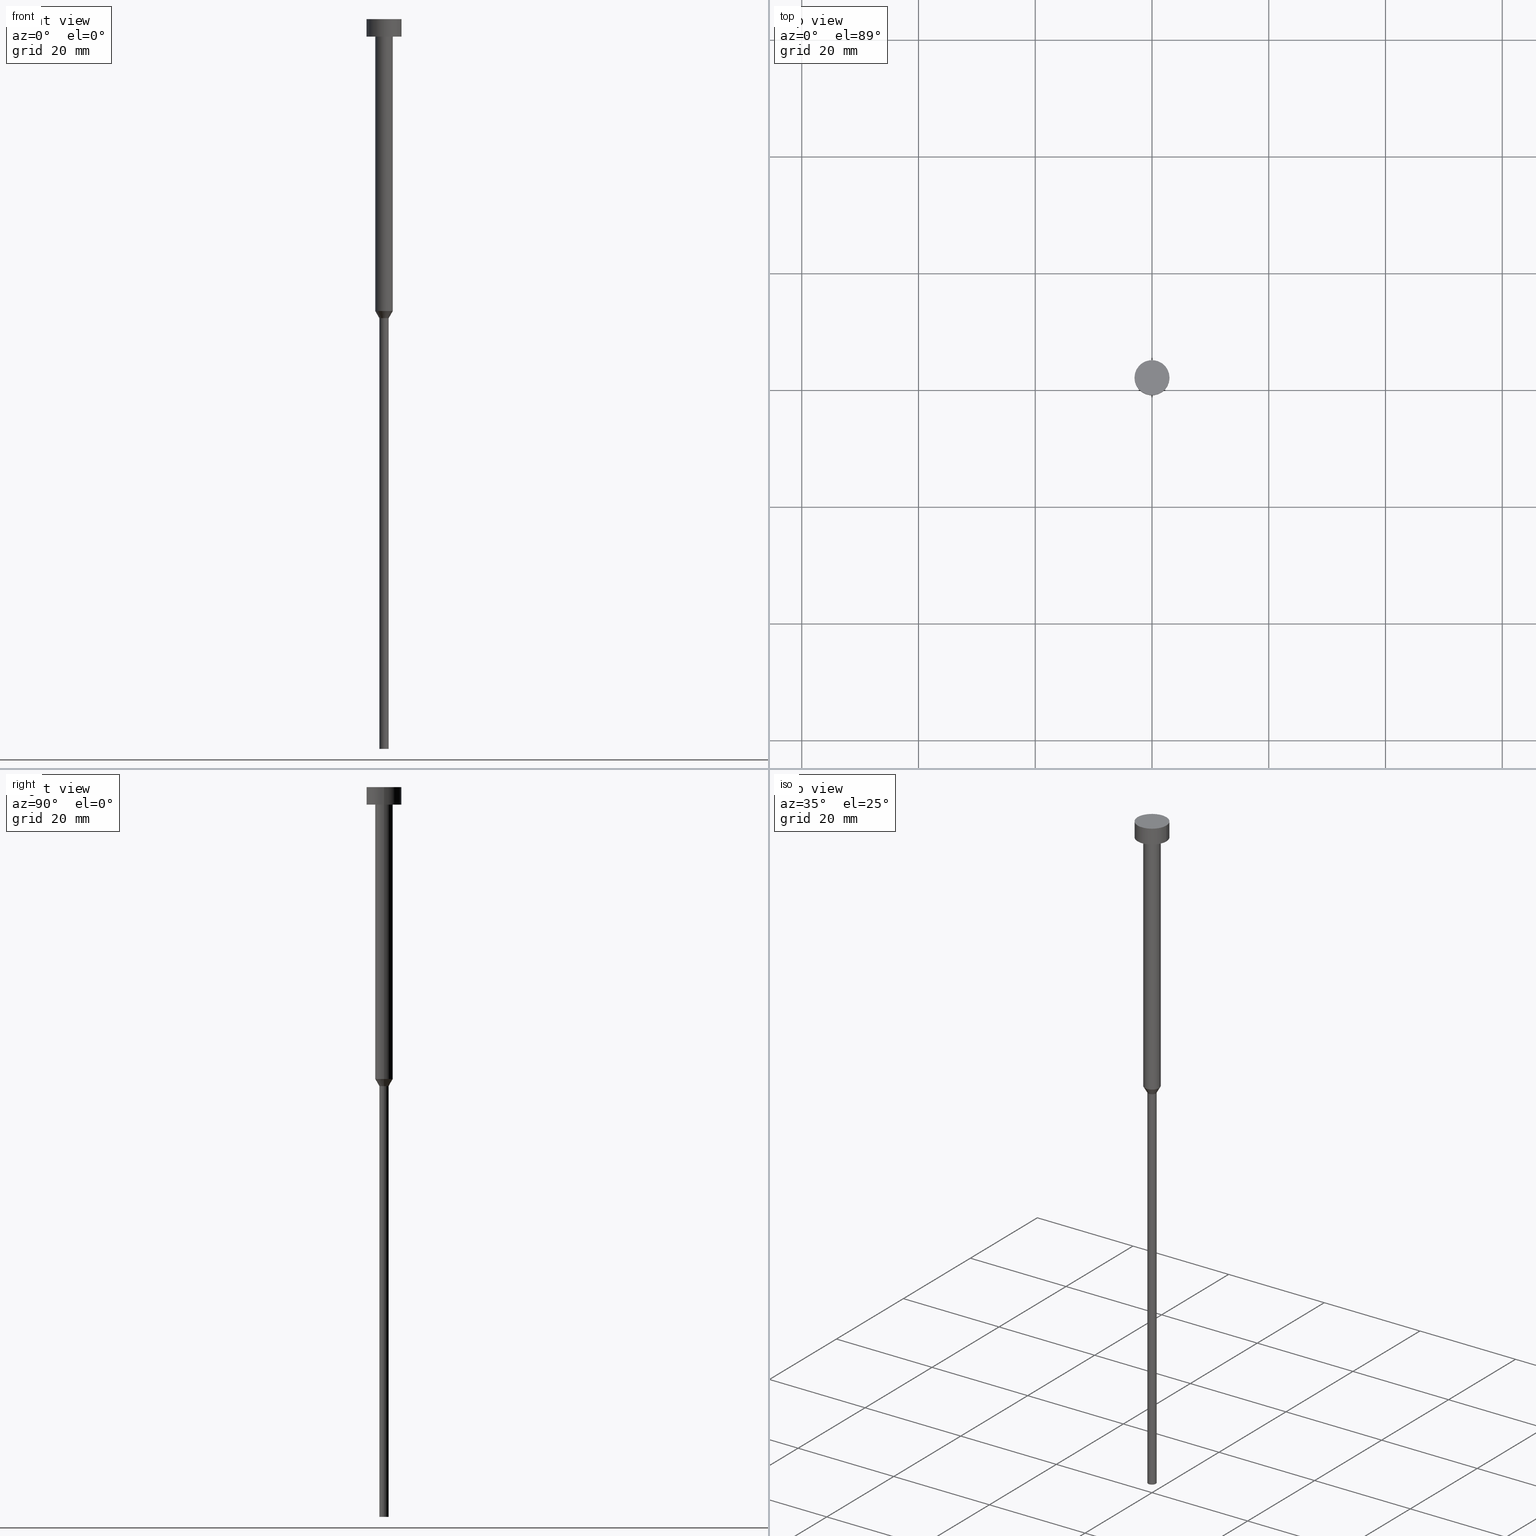
[diagram: canonical four-view strip — front | top / right | iso, engineering-drawing reading convention]
A machine part, canonical four-view strip (front | top / right | iso — engineering-drawing reading convention). The complete STEP part file that produces these views, byte-faithful:
ISO-10303-21;
HEADER;
FILE_DESCRIPTION (( 'STEP AP203' ),
    '1' );
FILE_NAME ('b818.STEP',
    '2023-02-13T10:54:30',
    ( '' ),
    ( '' ),
    'SwSTEP 2.0',
    'SolidWorks 2019',
    '' );
FILE_SCHEMA (( 'CONFIG_CONTROL_DESIGN' ));
ENDSEC;

DATA;
#1 = AXIS2_PLACEMENT_3D ( 'NONE', #355, #107, #352 ) ;
#2 = DATE_TIME_ROLE ( 'creation_date' ) ;
#3 = EDGE_LOOP ( 'NONE', ( #95, #169, #94, #336 ) ) ;
#4 = APPROVAL_STATUS ( 'not_yet_approved' ) ;
#5 = CARTESIAN_POINT ( 'NONE',  ( 1.500000000000000000, 0.000000000000000000, -3.000000000000000888 ) ) ;
#6 = CARTESIAN_POINT ( 'NONE',  ( 0.000000000000000000, 0.000000000000000000, 0.000000000000000000 ) ) ;
#7 = ORIENTED_EDGE ( 'NONE', *, *, #268, .F. ) ;
#8 = AXIS2_PLACEMENT_3D ( 'NONE', #243, #158, #82 ) ;
#9 = APPLICATION_PROTOCOL_DEFINITION ( 'international standard', 'config_control_design', 1994, #313 ) ;
#10 = ORIENTED_EDGE ( 'NONE', *, *, #162, .F. ) ;
#11 = ORIENTED_EDGE ( 'NONE', *, *, #291, .T. ) ;
#12 = CIRCLE ( 'NONE', #133, 0.7999999999999999334 ) ;
#13 = DIRECTION ( 'NONE',  ( 1.000000000000000000, 0.000000000000000000, 0.000000000000000000 ) ) ;
#14 = CC_DESIGN_APPROVAL ( #106, ( #117 ) ) ;
#15 = PLANE ( 'NONE',  #17 ) ;
#16 = FACE_OUTER_BOUND ( 'NONE', #122, .T. ) ;
#17 = AXIS2_PLACEMENT_3D ( 'NONE', #76, #262, #130 ) ;
#18 = FACE_OUTER_BOUND ( 'NONE', #201, .T. ) ;
#19 = CIRCLE ( 'NONE', #199, 3.000000000000000000 ) ;
#20 = CYLINDRICAL_SURFACE ( 'NONE', #123, 1.500000000000000000 ) ;
#21 = CARTESIAN_POINT ( 'NONE',  ( 0.000000000000000000, 0.000000000000000000, -3.000000000000000888 ) ) ;
#22 = DIRECTION ( 'NONE',  ( 1.000000000000000000, 0.000000000000000000, 0.000000000000000000 ) ) ;
#23 = CC_DESIGN_APPROVAL ( #44, ( #296 ) ) ;
#24 = PRODUCT ( 'b818', 'b818', '', ( #290 ) ) ;
#25 =( NAMED_UNIT ( * ) SI_UNIT ( $, .STERADIAN. ) SOLID_ANGLE_UNIT ( ) );
#26 = CARTESIAN_POINT ( 'NONE',  ( -3.000000000000000000, 3.673940397442059868E-16, -3.000000000000000888 ) ) ;
#27 = VERTEX_POINT ( 'NONE', #305 ) ;
#28 = DIRECTION ( 'NONE',  ( 1.000000000000000000, 0.000000000000000000, 0.000000000000000000 ) ) ;
#29 = VECTOR ( 'NONE', #151, 1000.000000000000000 ) ;
#30 = EDGE_LOOP ( 'NONE', ( #284, #288 ) ) ;
#31 = VECTOR ( 'NONE', #254, 1000.000000000000000 ) ;
#32 = CARTESIAN_POINT ( 'NONE',  ( 0.000000000000000000, 0.000000000000000000, 0.000000000000000000 ) ) ;
#33 = FACE_OUTER_BOUND ( 'NONE', #337, .T. ) ;
#34 = ORIENTED_EDGE ( 'NONE', *, *, #231, .F. ) ;
#35 = PERSON_AND_ORGANIZATION ( #121, #249 ) ;
#36 = EDGE_LOOP ( 'NONE', ( #87, #10 ) ) ;
#37 = ORIENTED_EDGE ( 'NONE', *, *, #354, .F. ) ;
#38 = AXIS2_PLACEMENT_3D ( 'NONE', #276, #214, #216 ) ;
#39 = ORIENTED_EDGE ( 'NONE', *, *, #41, .F. ) ;
#40 = DIRECTION ( 'NONE',  ( -0.000000000000000000, -0.000000000000000000, 1.000000000000000000 ) ) ;
#41 = EDGE_CURVE ( 'NONE', #221, #64, #251, .T. ) ;
#42 = CYLINDRICAL_SURFACE ( 'NONE', #43, 1.500000000000000000 ) ;
#43 = AXIS2_PLACEMENT_3D ( 'NONE', #45, #294, #155 ) ;
#44 = APPROVAL ( #222, 'NEUR�EN�' ) ;
#45 = CARTESIAN_POINT ( 'NONE',  ( 0.000000000000000000, 0.000000000000000000, 0.000000000000000000 ) ) ;
#46 = CARTESIAN_POINT ( 'NONE',  ( -1.500000000000000000, 1.836970198721029934E-16, -50.00000000000000000 ) ) ;
#47 = PRODUCT_DEFINITION ( 'NEZN�M�', '', #117, #318 ) ;
#48 = CARTESIAN_POINT ( 'NONE',  ( 0.000000000000000000, 0.000000000000000000, -3.000000000000000888 ) ) ;
#49 = VECTOR ( 'NONE', #303, 1000.000000000000000 ) ;
#50 = LINE ( 'NONE', #85, #49 ) ;
#51 = DIRECTION ( 'NONE',  ( -0.000000000000000000, -0.000000000000000000, 1.000000000000000000 ) ) ;
#52 = ADVANCED_BREP_SHAPE_REPRESENTATION ( 'b818', ( #204, #344 ), #141 ) ;
#53 = DIRECTION ( 'NONE',  ( -0.000000000000000000, -0.000000000000000000, 1.000000000000000000 ) ) ;
#54 = CIRCLE ( 'NONE', #244, 0.7999999999999999334 ) ;
#55 = DIRECTION ( 'NONE',  ( -0.000000000000000000, -0.000000000000000000, 1.000000000000000000 ) ) ;
#56 = DIRECTION ( 'NONE',  ( -0.000000000000000000, -0.000000000000000000, 1.000000000000000000 ) ) ;
#57 = PERSON_AND_ORGANIZATION_ROLE ( 'creator' ) ;
#58 = CC_DESIGN_PERSON_AND_ORGANIZATION_ASSIGNMENT ( #309, #60, ( #296 ) ) ;
#59 = ORIENTED_EDGE ( 'NONE', *, *, #162, .T. ) ;
#60 = PERSON_AND_ORGANIZATION_ROLE ( 'classification_officer' ) ;
#61 = ORIENTED_EDGE ( 'NONE', *, *, #280, .T. ) ;
#62 = ADVANCED_FACE ( 'NONE', ( #33 ), #167, .T. ) ;
#63 = DATE_AND_TIME ( #220, #322 ) ;
#64 = VERTEX_POINT ( 'NONE', #5 ) ;
#65 = EDGE_CURVE ( 'NONE', #282, #27, #350, .T. ) ;
#66 = ORIENTED_EDGE ( 'NONE', *, *, #270, .T. ) ;
#67 = VECTOR ( 'NONE', #323, 1000.000000000000000 ) ;
#68 = DATE_AND_TIME ( #252, #227 ) ;
#69 = APPROVAL_PERSON_ORGANIZATION ( #113, #106, #200 ) ;
#70 = EDGE_LOOP ( 'NONE', ( #205, #59, #61, #146 ) ) ;
#71 = CARTESIAN_POINT ( 'NONE',  ( 0.000000000000000000, 0.000000000000000000, -50.00000000000000000 ) ) ;
#72 = CARTESIAN_POINT ( 'NONE',  ( 0.000000000000000000, 0.000000000000000000, -1.836970198721029934E-16 ) ) ;
#73 = CARTESIAN_POINT ( 'NONE',  ( 0.000000000000000000, 0.000000000000000000, 0.000000000000000000 ) ) ;
#74 = AXIS2_PLACEMENT_3D ( 'NONE', #72, #181, #101 ) ;
#75 = DIRECTION ( 'NONE',  ( -0.000000000000000000, -0.000000000000000000, 1.000000000000000000 ) ) ;
#76 = CARTESIAN_POINT ( 'NONE',  ( 0.000000000000000000, 0.000000000000000000, -125.0000000000000000 ) ) ;
#77 = AXIS2_PLACEMENT_3D ( 'NONE', #48, #324, #317 ) ;
#78 = EDGE_CURVE ( 'NONE', #120, #171, #184, .T. ) ;
#79 = CARTESIAN_POINT ( 'NONE',  ( -3.000000000000000000, 3.673940397442059868E-16, -3.673940397442059868E-16 ) ) ;
#80 = CIRCLE ( 'NONE', #289, 0.8000000000000001554 ) ;
#81 =( LENGTH_UNIT ( ) NAMED_UNIT ( * ) SI_UNIT ( .MILLI., .METRE. ) );
#82 = DIRECTION ( 'NONE',  ( 1.000000000000000000, 0.000000000000000000, 0.000000000000000000 ) ) ;
#83 = CARTESIAN_POINT ( 'NONE',  ( 0.000000000000000000, 0.000000000000000000, 0.000000000000000000 ) ) ;
#84 = CIRCLE ( 'NONE', #8, 1.500000000000000000 ) ;
#85 = CARTESIAN_POINT ( 'NONE',  ( 3.000000000000000000, 0.000000000000000000, 0.000000000000000000 ) ) ;
#86 = DIRECTION ( 'NONE',  ( 1.000000000000000000, 0.000000000000000000, 0.000000000000000000 ) ) ;
#87 = ORIENTED_EDGE ( 'NONE', *, *, #291, .F. ) ;
#88 = PERSON_AND_ORGANIZATION ( #121, #249 ) ;
#89 = ORIENTED_EDGE ( 'NONE', *, *, #345, .T. ) ;
#90 = LOCAL_TIME ( 11, 54, 30.00000000000000000, #202 ) ;
#91 = PERSON_AND_ORGANIZATION_ROLE ( 'creator' ) ;
#92 = ORIENTED_EDGE ( 'NONE', *, *, #41, .T. ) ;
#93 = SHAPE_DEFINITION_REPRESENTATION ( #228, #52 ) ;
#94 = ORIENTED_EDGE ( 'NONE', *, *, #253, .T. ) ;
#95 = ORIENTED_EDGE ( 'NONE', *, *, #132, .F. ) ;
#96 = CIRCLE ( 'NONE', #157, 3.000000000000000000 ) ;
#97 = CARTESIAN_POINT ( 'NONE',  ( 1.500000000000000000, 0.000000000000000000, -50.00000000000000000 ) ) ;
#98 = CARTESIAN_POINT ( 'NONE',  ( -1.500000000000000000, 1.836970198721029934E-16, 0.000000000000000000 ) ) ;
#99 = FACE_OUTER_BOUND ( 'NONE', #70, .T. ) ;
#100 = EDGE_CURVE ( 'NONE', #203, #312, #173, .T. ) ;
#101 = DIRECTION ( 'NONE',  ( 1.000000000000000000, 0.000000000000000000, 0.000000000000000000 ) ) ;
#102 = AXIS2_PLACEMENT_3D ( 'NONE', #269, #51, #163 ) ;
#103 = CARTESIAN_POINT ( 'NONE',  ( 0.7999999999999999334, 0.000000000000000000, -125.0000000000000000 ) ) ;
#104 = DIRECTION ( 'NONE',  ( -0.000000000000000000, -0.000000000000000000, 1.000000000000000000 ) ) ;
#105 = DIRECTION ( 'NONE',  ( 1.000000000000000000, 0.000000000000000000, 0.000000000000000000 ) ) ;
#106 = APPROVAL ( #281, 'NEUR�EN�' ) ;
#107 = DIRECTION ( 'NONE',  ( -0.000000000000000000, -0.000000000000000000, 1.000000000000000000 ) ) ;
#108 = CARTESIAN_POINT ( 'NONE',  ( 0.000000000000000000, 0.000000000000000000, -3.673940397442059868E-16 ) ) ;
#109 = LINE ( 'NONE', #331, #237 ) ;
#110 = CONICAL_SURFACE ( 'NONE', #38, 1.500000000000000000, 0.5235987755983007030 ) ;
#111 = COORDINATED_UNIVERSAL_TIME_OFFSET ( 1, 0, .AHEAD. ) ;
#112 = ORIENTED_EDGE ( 'NONE', *, *, #240, .F. ) ;
#113 = PERSON_AND_ORGANIZATION ( #121, #249 ) ;
#114 = CARTESIAN_POINT ( 'NONE',  ( 1.500000000000000000, 0.000000000000000000, 0.000000000000000000 ) ) ;
#115 = ADVANCED_FACE ( 'NONE', ( #234 ), #20, .T. ) ;
#116 = ORIENTED_EDGE ( 'NONE', *, *, #351, .F. ) ;
#117 = PRODUCT_DEFINITION_FORMATION_WITH_SPECIFIED_SOURCE ( 'LIBOVOLN�', '', #24, .NOT_KNOWN. ) ;
#118 = PERSON_AND_ORGANIZATION_ROLE ( 'design_supplier' ) ;
#119 = VERTEX_POINT ( 'NONE', #103 ) ;
#120 = VERTEX_POINT ( 'NONE', #125 ) ;
#121 = PERSON ( 'NEUR�EN�', 'NEUR�EN�', 'NEUR�EN�', ('NEUR�EN�'), ('NEUR�EN�'), ('NEUR�EN�') ) ;
#122 = EDGE_LOOP ( 'NONE', ( #315, #116 ) ) ;
#123 = AXIS2_PLACEMENT_3D ( 'NONE', #346, #238, #265 ) ;
#124 = AXIS2_PLACEMENT_3D ( 'NONE', #137, #325, #239 ) ;
#125 = CARTESIAN_POINT ( 'NONE',  ( -1.500000000000000000, 1.836970198721029934E-16, -50.00000000000000000 ) ) ;
#126 = CARTESIAN_POINT ( 'NONE',  ( -0.8000000000000000444, 9.797174393178826150E-17, 0.000000000000000000 ) ) ;
#127 = DIRECTION ( 'NONE',  ( -0.000000000000000000, -0.000000000000000000, 1.000000000000000000 ) ) ;
#128 = DIRECTION ( 'NONE',  ( -0.5000000000000015543, 6.123233995736783292E-17, 0.8660254037844377084 ) ) ;
#129 = CIRCLE ( 'NONE', #327, 0.8000000000000001554 ) ;
#130 = DIRECTION ( 'NONE',  ( -1.000000000000000000, 0.000000000000000000, -0.000000000000000000 ) ) ;
#131 = CYLINDRICAL_SURFACE ( 'NONE', #1, 3.000000000000000000 ) ;
#132 = EDGE_CURVE ( 'NONE', #312, #341, #180, .T. ) ;
#133 = AXIS2_PLACEMENT_3D ( 'NONE', #297, #127, #299 ) ;
#134 = VERTEX_POINT ( 'NONE', #347 ) ;
#135 = APPROVAL_PERSON_ORGANIZATION ( #283, #44, #335 ) ;
#136 = DIRECTION ( 'NONE',  ( 1.000000000000000000, 0.000000000000000000, 0.000000000000000000 ) ) ;
#137 = CARTESIAN_POINT ( 'NONE',  ( 0.000000000000000000, 0.000000000000000000, -3.000000000000000888 ) ) ;
#138 = ORIENTED_EDGE ( 'NONE', *, *, #78, .F. ) ;
#139 = CALENDAR_DATE ( 2023, 13, 2 ) ;
#140 = ADVANCED_FACE ( 'NONE', ( #187, #16 ), #264, .T. ) ;
#141 =( GEOMETRIC_REPRESENTATION_CONTEXT ( 3 ) GLOBAL_UNCERTAINTY_ASSIGNED_CONTEXT ( ( #159 ) ) GLOBAL_UNIT_ASSIGNED_CONTEXT ( ( #81, #245, #25 ) ) REPRESENTATION_CONTEXT ( 'NONE', 'WORKASPACE' ) );
#142 = PERSON_AND_ORGANIZATION_ROLE ( 'design_owner' ) ;
#143 = DIRECTION ( 'NONE',  ( 1.000000000000000000, 0.000000000000000000, 0.000000000000000000 ) ) ;
#144 = ORIENTED_EDGE ( 'NONE', *, *, #295, .F. ) ;
#145 = COORDINATED_UNIVERSAL_TIME_OFFSET ( 1, 0, .AHEAD. ) ;
#146 = ORIENTED_EDGE ( 'NONE', *, *, #345, .F. ) ;
#147 = AXIS2_PLACEMENT_3D ( 'NONE', #83, #104, #213 ) ;
#148 = ORIENTED_EDGE ( 'NONE', *, *, #231, .T. ) ;
#149 = EDGE_LOOP ( 'NONE', ( #138, #310, #92, #144 ) ) ;
#150 = CC_DESIGN_PERSON_AND_ORGANIZATION_ASSIGNMENT ( #287, #57, ( #117 ) ) ;
#151 = DIRECTION ( 'NONE',  ( -0.000000000000000000, -0.000000000000000000, 1.000000000000000000 ) ) ;
#152 = LOCAL_TIME ( 11, 54, 30.00000000000000000, #258 ) ;
#153 = DIRECTION ( 'NONE',  ( -0.000000000000000000, -0.000000000000000000, 1.000000000000000000 ) ) ;
#154 = DIRECTION ( 'NONE',  ( -1.000000000000000000, 0.000000000000000000, -0.000000000000000000 ) ) ;
#155 = DIRECTION ( 'NONE',  ( 1.000000000000000000, 0.000000000000000000, 0.000000000000000000 ) ) ;
#156 = LINE ( 'NONE', #46, #182 ) ;
#157 = AXIS2_PLACEMENT_3D ( 'NONE', #194, #53, #301 ) ;
#158 = DIRECTION ( 'NONE',  ( -0.000000000000000000, -0.000000000000000000, 1.000000000000000000 ) ) ;
#159 = UNCERTAINTY_MEASURE_WITH_UNIT (LENGTH_MEASURE( 1.000000000000000082E-05 ), #81, 'distance_accuracy_value', 'NONE');
#160 = FACE_OUTER_BOUND ( 'NONE', #3, .T. ) ;
#161 = CIRCLE ( 'NONE', #176, 1.500000000000000000 ) ;
#162 = EDGE_CURVE ( 'NONE', #282, #119, #12, .T. ) ;
#163 = DIRECTION ( 'NONE',  ( 1.000000000000000000, 0.000000000000000000, 0.000000000000000000 ) ) ;
#164 = ORIENTED_EDGE ( 'NONE', *, *, #206, .F. ) ;
#165 = VECTOR ( 'NONE', #153, 1000.000000000000000 ) ;
#166 = SECURITY_CLASSIFICATION_LEVEL ( 'unclassified' ) ;
#167 = CYLINDRICAL_SURFACE ( 'NONE', #326, 0.8000000000000000444 ) ;
#168 = COORDINATED_UNIVERSAL_TIME_OFFSET ( 1, 0, .AHEAD. ) ;
#169 = ORIENTED_EDGE ( 'NONE', *, *, #351, .T. ) ;
#170 = CALENDAR_DATE ( 2023, 13, 2 ) ;
#171 = VERTEX_POINT ( 'NONE', #207 ) ;
#172 = ADVANCED_FACE ( 'NONE', ( #293 ), #15, .T. ) ;
#173 = CIRCLE ( 'NONE', #77, 3.000000000000000000 ) ;
#174 = DIRECTION ( 'NONE',  ( -0.000000000000000000, -0.000000000000000000, 1.000000000000000000 ) ) ;
#175 = CIRCLE ( 'NONE', #124, 1.500000000000000000 ) ;
#176 = AXIS2_PLACEMENT_3D ( 'NONE', #21, #247, #136 ) ;
#177 = CC_DESIGN_PERSON_AND_ORGANIZATION_ASSIGNMENT ( #334, #142, ( #24 ) ) ;
#178 = EDGE_LOOP ( 'NONE', ( #260, #230, #112, #39 ) ) ;
#179 = ADVANCED_FACE ( 'NONE', ( #99 ), #236, .T. ) ;
#180 = LINE ( 'NONE', #212, #165 ) ;
#181 = DIRECTION ( 'NONE',  ( 0.000000000000000000, -0.000000000000000000, 1.000000000000000000 ) ) ;
#182 = VECTOR ( 'NONE', #128, 1000.000000000000227 ) ;
#183 = APPROVAL_PERSON_ORGANIZATION ( #35, #328, #250 ) ;
#184 = LINE ( 'NONE', #98, #29 ) ;
#185 = ADVANCED_FACE ( 'NONE', ( #210 ), #272, .T. ) ;
#186 = DIRECTION ( 'NONE',  ( 1.000000000000000000, 0.000000000000000000, 0.000000000000000000 ) ) ;
#187 = FACE_BOUND ( 'NONE', #30, .T. ) ;
#188 = CLOSED_SHELL ( 'NONE', ( #286, #115, #185, #62, #172, #179, #235, #225, #140, #246, #208 ) ) ;
#189 = CC_DESIGN_PERSON_AND_ORGANIZATION_ASSIGNMENT ( #248, #91, ( #47 ) ) ;
#190 = AXIS2_PLACEMENT_3D ( 'NONE', #71, #298, #13 ) ;
#191 = DIRECTION ( 'NONE',  ( -0.000000000000000000, -0.000000000000000000, 1.000000000000000000 ) ) ;
#192 = CC_DESIGN_SECURITY_CLASSIFICATION ( #296, ( #117 ) ) ;
#193 = CARTESIAN_POINT ( 'NONE',  ( -0.7999999999999999334, 9.797174393178826150E-17, -125.0000000000000000 ) ) ;
#194 = CARTESIAN_POINT ( 'NONE',  ( 0.000000000000000000, 0.000000000000000000, -3.000000000000000888 ) ) ;
#195 = DATE_AND_TIME ( #139, #152 ) ;
#196 = ORIENTED_EDGE ( 'NONE', *, *, #280, .F. ) ;
#197 = CALENDAR_DATE ( 2023, 13, 2 ) ;
#198 = VERTEX_POINT ( 'NONE', #348 ) ;
#199 = AXIS2_PLACEMENT_3D ( 'NONE', #108, #353, #28 ) ;
#200 = APPROVAL_ROLE ( '' ) ;
#201 = EDGE_LOOP ( 'NONE', ( #164, #89, #330, #37 ) ) ;
#202 = COORDINATED_UNIVERSAL_TIME_OFFSET ( 1, 0, .AHEAD. ) ;
#203 = VERTEX_POINT ( 'NONE', #209 ) ;
#204 = MANIFOLD_SOLID_BREP ( 'Rotovat1', #188 ) ;
#205 = ORIENTED_EDGE ( 'NONE', *, *, #65, .F. ) ;
#206 = EDGE_CURVE ( 'NONE', #27, #120, #156, .T. ) ;
#207 = CARTESIAN_POINT ( 'NONE',  ( -1.500000000000000000, 1.836970198721029934E-16, -3.000000000000000888 ) ) ;
#208 = ADVANCED_FACE ( 'NONE', ( #320 ), #267, .T. ) ;
#209 = CARTESIAN_POINT ( 'NONE',  ( 3.000000000000000000, 0.000000000000000000, -3.000000000000000888 ) ) ;
#210 = FACE_OUTER_BOUND ( 'NONE', #339, .T. ) ;
#211 = CARTESIAN_POINT ( 'NONE',  ( 0.000000000000000000, 0.000000000000000000, -51.21243556529821461 ) ) ;
#212 = CARTESIAN_POINT ( 'NONE',  ( -3.000000000000000000, 3.673940397442059868E-16, 0.000000000000000000 ) ) ;
#213 = DIRECTION ( 'NONE',  ( 1.000000000000000000, 0.000000000000000000, 0.000000000000000000 ) ) ;
#214 = DIRECTION ( 'NONE',  ( -0.000000000000000000, -0.000000000000000000, 1.000000000000000000 ) ) ;
#215 = ORIENTED_EDGE ( 'NONE', *, *, #206, .T. ) ;
#216 = DIRECTION ( 'NONE',  ( 1.000000000000000000, 0.000000000000000000, 0.000000000000000000 ) ) ;
#217 = CYLINDRICAL_SURFACE ( 'NONE', #147, 3.000000000000000000 ) ;
#218 = CARTESIAN_POINT ( 'NONE',  ( 0.8000000000000000444, 0.000000000000000000, 0.000000000000000000 ) ) ;
#219 = CC_DESIGN_APPROVAL ( #328, ( #47 ) ) ;
#220 = CALENDAR_DATE ( 2023, 13, 2 ) ;
#221 = VERTEX_POINT ( 'NONE', #97 ) ;
#222 = APPROVAL_STATUS ( 'not_yet_approved' ) ;
#223 = ORIENTED_EDGE ( 'NONE', *, *, #259, .T. ) ;
#224 = AXIS2_PLACEMENT_3D ( 'NONE', #73, #40, #343 ) ;
#225 = ADVANCED_FACE ( 'NONE', ( #266 ), #42, .T. ) ;
#226 = ORIENTED_EDGE ( 'NONE', *, *, #100, .T. ) ;
#227 = LOCAL_TIME ( 11, 54, 30.00000000000000000, #168 ) ;
#228 = PRODUCT_DEFINITION_SHAPE ( 'NONE', 'NONE',  #47 ) ;
#229 = ORIENTED_EDGE ( 'NONE', *, *, #65, .T. ) ;
#230 = ORIENTED_EDGE ( 'NONE', *, *, #78, .T. ) ;
#231 = EDGE_CURVE ( 'NONE', #198, #27, #80, .T. ) ;
#232 = EDGE_LOOP ( 'NONE', ( #226, #278, #292, #308 ) ) ;
#233 = DIRECTION ( 'NONE',  ( 0.000000000000000000, 0.000000000000000000, -1.000000000000000000 ) ) ;
#234 = FACE_OUTER_BOUND ( 'NONE', #178, .T. ) ;
#235 = ADVANCED_FACE ( 'NONE', ( #18 ), #110, .T. ) ;
#236 = CYLINDRICAL_SURFACE ( 'NONE', #224, 0.8000000000000000444 ) ;
#237 = VECTOR ( 'NONE', #332, 1000.000000000000227 ) ;
#238 = DIRECTION ( 'NONE',  ( -0.000000000000000000, -0.000000000000000000, 1.000000000000000000 ) ) ;
#239 = DIRECTION ( 'NONE',  ( 1.000000000000000000, 0.000000000000000000, 0.000000000000000000 ) ) ;
#240 = EDGE_CURVE ( 'NONE', #64, #171, #161, .T. ) ;
#241 = LINE ( 'NONE', #218, #274 ) ;
#242 = EDGE_CURVE ( 'NONE', #198, #221, #109, .T. ) ;
#243 = CARTESIAN_POINT ( 'NONE',  ( 0.000000000000000000, 0.000000000000000000, -50.00000000000000000 ) ) ;
#244 = AXIS2_PLACEMENT_3D ( 'NONE', #273, #55, #105 ) ;
#245 =( NAMED_UNIT ( * ) PLANE_ANGLE_UNIT ( ) SI_UNIT ( $, .RADIAN. ) );
#246 = ADVANCED_FACE ( 'NONE', ( #160 ), #131, .T. ) ;
#247 = DIRECTION ( 'NONE',  ( -0.000000000000000000, -0.000000000000000000, 1.000000000000000000 ) ) ;
#248 = PERSON_AND_ORGANIZATION ( #121, #249 ) ;
#249 = ORGANIZATION ( 'NEUR�EN�', 'NEUR�EN�', '' ) ;
#250 = APPROVAL_ROLE ( '' ) ;
#251 = LINE ( 'NONE', #114, #31 ) ;
#252 = CALENDAR_DATE ( 2023, 13, 2 ) ;
#253 = EDGE_CURVE ( 'NONE', #203, #134, #50, .T. ) ;
#254 = DIRECTION ( 'NONE',  ( -0.000000000000000000, -0.000000000000000000, 1.000000000000000000 ) ) ;
#255 = DATE_AND_TIME ( #197, #300 ) ;
#256 = ORIENTED_EDGE ( 'NONE', *, *, #242, .F. ) ;
#257 = AXIS2_PLACEMENT_3D ( 'NONE', #329, #56, #22 ) ;
#258 = COORDINATED_UNIVERSAL_TIME_OFFSET ( 1, 0, .AHEAD. ) ;
#259 = EDGE_CURVE ( 'NONE', #134, #341, #19, .T. ) ;
#260 = ORIENTED_EDGE ( 'NONE', *, *, #268, .T. ) ;
#261 = EDGE_LOOP ( 'NONE', ( #223, #66 ) ) ;
#262 = DIRECTION ( 'NONE',  ( 0.000000000000000000, 0.000000000000000000, -1.000000000000000000 ) ) ;
#263 = CC_DESIGN_PERSON_AND_ORGANIZATION_ASSIGNMENT ( #88, #118, ( #117 ) ) ;
#264 = PLANE ( 'NONE',  #306 ) ;
#265 = DIRECTION ( 'NONE',  ( 1.000000000000000000, 0.000000000000000000, 0.000000000000000000 ) ) ;
#266 = FACE_OUTER_BOUND ( 'NONE', #149, .T. ) ;
#267 = PLANE ( 'NONE',  #74 ) ;
#268 = EDGE_CURVE ( 'NONE', #221, #120, #84, .T. ) ;
#269 = CARTESIAN_POINT ( 'NONE',  ( 0.000000000000000000, 0.000000000000000000, -3.673940397442059868E-16 ) ) ;
#270 = EDGE_CURVE ( 'NONE', #341, #134, #279, .T. ) ;
#271 = FACE_OUTER_BOUND ( 'NONE', #232, .T. ) ;
#272 = CONICAL_SURFACE ( 'NONE', #190, 1.500000000000000000, 0.5235987755983007030 ) ;
#273 = CARTESIAN_POINT ( 'NONE',  ( 0.000000000000000000, 0.000000000000000000, -125.0000000000000000 ) ) ;
#274 = VECTOR ( 'NONE', #275, 1000.000000000000000 ) ;
#275 = DIRECTION ( 'NONE',  ( -0.000000000000000000, -0.000000000000000000, 1.000000000000000000 ) ) ;
#276 = CARTESIAN_POINT ( 'NONE',  ( 0.000000000000000000, 0.000000000000000000, -50.00000000000000000 ) ) ;
#277 = DATE_AND_TIME ( #170, #90 ) ;
#278 = ORIENTED_EDGE ( 'NONE', *, *, #132, .T. ) ;
#279 = CIRCLE ( 'NONE', #102, 3.000000000000000000 ) ;
#280 = EDGE_CURVE ( 'NONE', #119, #198, #241, .T. ) ;
#281 = APPROVAL_STATUS ( 'not_yet_approved' ) ;
#282 = VERTEX_POINT ( 'NONE', #193 ) ;
#283 = PERSON_AND_ORGANIZATION ( #121, #249 ) ;
#284 = ORIENTED_EDGE ( 'NONE', *, *, #240, .T. ) ;
#285 = APPLICATION_CONTEXT ( 'configuration controlled 3d designs of mechanical parts and assemblies' ) ;
#286 = ADVANCED_FACE ( 'NONE', ( #271 ), #217, .T. ) ;
#287 = PERSON_AND_ORGANIZATION ( #121, #249 ) ;
#288 = ORIENTED_EDGE ( 'NONE', *, *, #295, .T. ) ;
#289 = AXIS2_PLACEMENT_3D ( 'NONE', #211, #75, #186 ) ;
#290 = MECHANICAL_CONTEXT ( 'NONE', #285, 'mechanical' ) ;
#291 = EDGE_CURVE ( 'NONE', #119, #282, #54, .T. ) ;
#292 = ORIENTED_EDGE ( 'NONE', *, *, #259, .F. ) ;
#293 = FACE_OUTER_BOUND ( 'NONE', #36, .T. ) ;
#294 = DIRECTION ( 'NONE',  ( -0.000000000000000000, -0.000000000000000000, 1.000000000000000000 ) ) ;
#295 = EDGE_CURVE ( 'NONE', #171, #64, #175, .T. ) ;
#296 = SECURITY_CLASSIFICATION ( '', '', #166 ) ;
#297 = CARTESIAN_POINT ( 'NONE',  ( 0.000000000000000000, 0.000000000000000000, -125.0000000000000000 ) ) ;
#298 = DIRECTION ( 'NONE',  ( -0.000000000000000000, -0.000000000000000000, 1.000000000000000000 ) ) ;
#299 = DIRECTION ( 'NONE',  ( 1.000000000000000000, 0.000000000000000000, 0.000000000000000000 ) ) ;
#300 = LOCAL_TIME ( 11, 54, 30.00000000000000000, #145 ) ;
#301 = DIRECTION ( 'NONE',  ( 1.000000000000000000, 0.000000000000000000, 0.000000000000000000 ) ) ;
#302 = DIRECTION ( 'NONE',  ( 1.000000000000000000, 0.000000000000000000, 0.000000000000000000 ) ) ;
#303 = DIRECTION ( 'NONE',  ( -0.000000000000000000, -0.000000000000000000, 1.000000000000000000 ) ) ;
#304 = APPROVAL_DATE_TIME ( #63, #106 ) ;
#305 = CARTESIAN_POINT ( 'NONE',  ( -0.8000000000000002665, 9.797174393178828616E-17, -51.21243556529821461 ) ) ;
#306 = AXIS2_PLACEMENT_3D ( 'NONE', #319, #233, #154 ) ;
#307 = APPROVAL_DATE_TIME ( #255, #44 ) ;
#308 = ORIENTED_EDGE ( 'NONE', *, *, #253, .F. ) ;
#309 = PERSON_AND_ORGANIZATION ( #121, #249 ) ;
#310 = ORIENTED_EDGE ( 'NONE', *, *, #354, .T. ) ;
#311 = DATE_TIME_ROLE ( 'classification_date' ) ;
#312 = VERTEX_POINT ( 'NONE', #26 ) ;
#313 = APPLICATION_CONTEXT ( 'configuration controlled 3d designs of mechanical parts and assemblies' ) ;
#314 = APPROVAL_DATE_TIME ( #195, #328 ) ;
#315 = ORIENTED_EDGE ( 'NONE', *, *, #100, .F. ) ;
#316 = CC_DESIGN_DATE_AND_TIME_ASSIGNMENT ( #68, #2, ( #47 ) ) ;
#317 = DIRECTION ( 'NONE',  ( 1.000000000000000000, 0.000000000000000000, 0.000000000000000000 ) ) ;
#318 = DESIGN_CONTEXT ( 'detailed design', #313, 'design' ) ;
#319 = CARTESIAN_POINT ( 'NONE',  ( 0.000000000000000000, -3.000000000000000000, -3.000000000000000888 ) ) ;
#320 = FACE_OUTER_BOUND ( 'NONE', #261, .T. ) ;
#321 = PRODUCT_RELATED_PRODUCT_CATEGORY ( 'detail', '', ( #24 ) ) ;
#322 = LOCAL_TIME ( 11, 54, 30.00000000000000000, #111 ) ;
#323 = DIRECTION ( 'NONE',  ( -0.000000000000000000, -0.000000000000000000, 1.000000000000000000 ) ) ;
#324 = DIRECTION ( 'NONE',  ( -0.000000000000000000, -0.000000000000000000, 1.000000000000000000 ) ) ;
#325 = DIRECTION ( 'NONE',  ( -0.000000000000000000, -0.000000000000000000, 1.000000000000000000 ) ) ;
#326 = AXIS2_PLACEMENT_3D ( 'NONE', #6, #174, #143 ) ;
#327 = AXIS2_PLACEMENT_3D ( 'NONE', #333, #191, #302 ) ;
#328 = APPROVAL ( #4, 'NEUR�EN�' ) ;
#329 = CARTESIAN_POINT ( 'NONE',  ( 0.000000000000000000, 0.000000000000000000, -50.00000000000000000 ) ) ;
#330 = ORIENTED_EDGE ( 'NONE', *, *, #242, .T. ) ;
#331 = CARTESIAN_POINT ( 'NONE',  ( 1.500000000000000000, 0.000000000000000000, -50.00000000000000000 ) ) ;
#332 = DIRECTION ( 'NONE',  ( 0.5000000000000015543, 0.000000000000000000, 0.8660254037844377084 ) ) ;
#333 = CARTESIAN_POINT ( 'NONE',  ( 0.000000000000000000, 0.000000000000000000, -51.21243556529821461 ) ) ;
#334 = PERSON_AND_ORGANIZATION ( #121, #249 ) ;
#335 = APPROVAL_ROLE ( '' ) ;
#336 = ORIENTED_EDGE ( 'NONE', *, *, #270, .F. ) ;
#337 = EDGE_LOOP ( 'NONE', ( #11, #229, #34, #196 ) ) ;
#338 = DIRECTION ( 'NONE',  ( 0.000000000000000000, 0.000000000000000000, 1.000000000000000000 ) ) ;
#339 = EDGE_LOOP ( 'NONE', ( #148, #215, #7, #256 ) ) ;
#340 = APPLICATION_PROTOCOL_DEFINITION ( 'international standard', 'config_control_design', 1994, #285 ) ;
#341 = VERTEX_POINT ( 'NONE', #79 ) ;
#342 = CC_DESIGN_DATE_AND_TIME_ASSIGNMENT ( #277, #311, ( #296 ) ) ;
#343 = DIRECTION ( 'NONE',  ( 1.000000000000000000, 0.000000000000000000, 0.000000000000000000 ) ) ;
#344 = AXIS2_PLACEMENT_3D ( 'NONE', #32, #338, #86 ) ;
#345 = EDGE_CURVE ( 'NONE', #27, #198, #129, .T. ) ;
#346 = CARTESIAN_POINT ( 'NONE',  ( 0.000000000000000000, 0.000000000000000000, 0.000000000000000000 ) ) ;
#347 = CARTESIAN_POINT ( 'NONE',  ( 3.000000000000000000, 0.000000000000000000, -3.673940397442059868E-16 ) ) ;
#348 = CARTESIAN_POINT ( 'NONE',  ( 0.8000000000000001554, 0.000000000000000000, -51.21243556529821461 ) ) ;
#349 = CIRCLE ( 'NONE', #257, 1.500000000000000000 ) ;
#350 = LINE ( 'NONE', #126, #67 ) ;
#351 = EDGE_CURVE ( 'NONE', #312, #203, #96, .T. ) ;
#352 = DIRECTION ( 'NONE',  ( 1.000000000000000000, 0.000000000000000000, 0.000000000000000000 ) ) ;
#353 = DIRECTION ( 'NONE',  ( -0.000000000000000000, -0.000000000000000000, 1.000000000000000000 ) ) ;
#354 = EDGE_CURVE ( 'NONE', #120, #221, #349, .T. ) ;
#355 = CARTESIAN_POINT ( 'NONE',  ( 0.000000000000000000, 0.000000000000000000, 0.000000000000000000 ) ) ;
ENDSEC;
END-ISO-10303-21;
